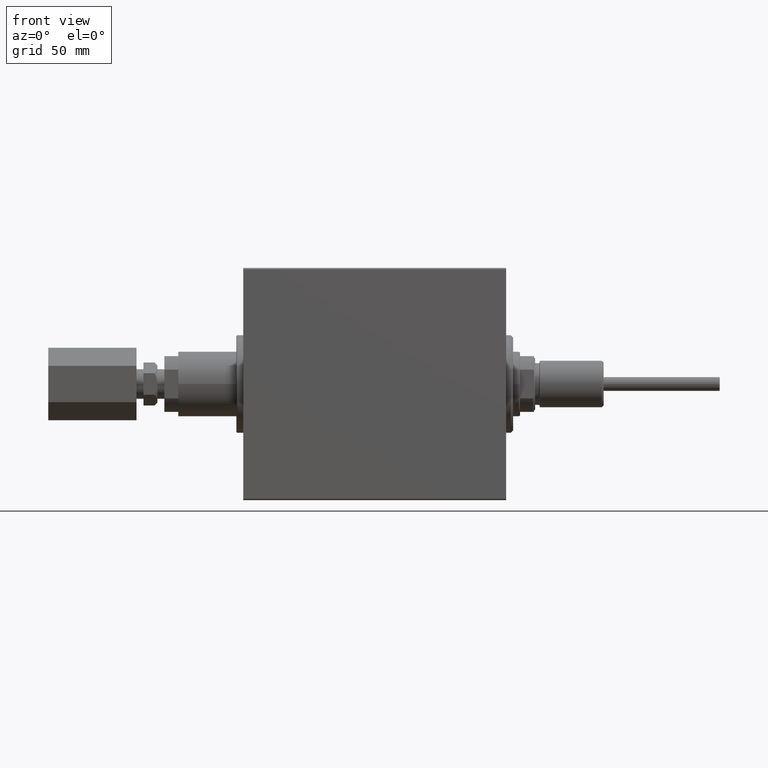
[diagram: clean part render]
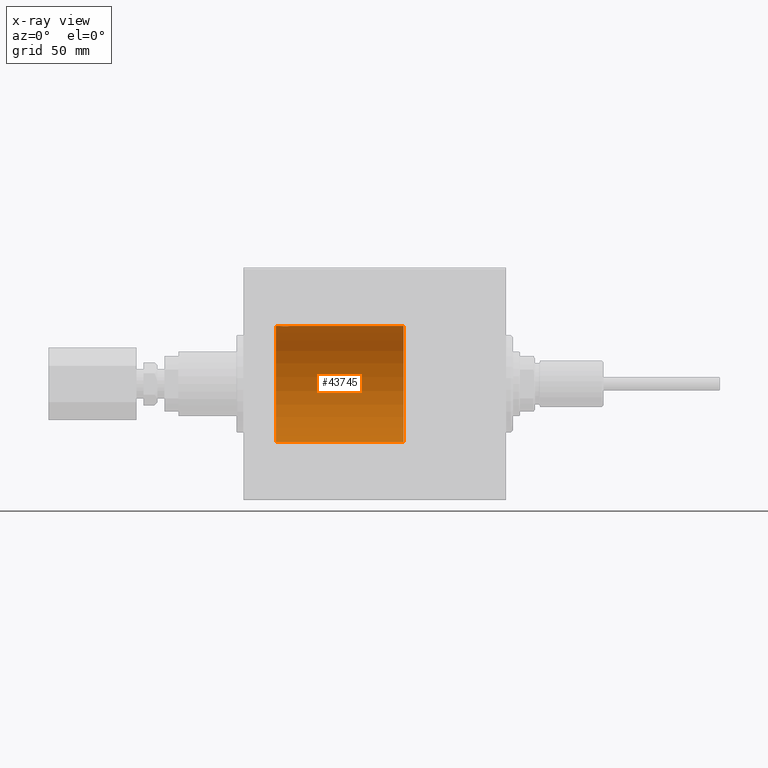
[diagram: x-ray — body ghosted, one internal face saturated and labeled with its STEP entity id]
A machine part, front view, then the same camera in x-ray: the body is ghosted and one INTERNAL B-rep face — a face not visible from any outside direction — is saturated and labeled: STEP entity #43745.
In plain terms, the highlighted cylindrical surface (partial cylindrical patch) has radius 25 mm, axis along (1, 0, -0).
Its self-contained STEP definition (entity closure, byte-faithful):
#419 = CARTESIAN_POINT ( 'NONE',  ( 95.84560666148634311, -2.420689345803763715, 24.88254961038873603 ) ) ;
#630 = ORIENTED_EDGE ( 'NONE', *, *, #33164, .F. ) ;
#656 = CARTESIAN_POINT ( 'NONE',  ( 97.70000000000000284, -0.3305063766663749458, 25.00000000000000355 ) ) ;
#1363 = CARTESIAN_POINT ( 'NONE',  ( 92.77985090779071697, -0.6480119923854230635, 24.99212088949391131 ) ) ;
#1863 = DIRECTION ( 'NONE',  ( 0.000000000000000000, 0.000000000000000000, 1.000000000000000000 ) ) ;
#2766 = EDGE_CURVE ( 'NONE', #29213, #4576, #47558, .T. ) ;
#2931 = EDGE_CURVE ( 'NONE', #25366, #4789, #19327, .T. ) ;
#3809 = CARTESIAN_POINT ( 'NONE',  ( 99.20000000000000284, 0.000000000000000000, 25.00000000000000000 ) ) ;
#4035 = CARTESIAN_POINT ( 'NONE',  ( 94.39211657594196936, -2.371528299825756303, 24.88734287464371064 ) ) ;
#4266 = CARTESIAN_POINT ( 'NONE',  ( 96.45084023924056282, -2.170728182476725721, 24.90574631553725027 ) ) ;
#4506 = CARTESIAN_POINT ( 'NONE',  ( 96.00435660916305380, -2.372734907014180994, 24.88722742718433878 ) ) ;
#4576 = VERTEX_POINT ( 'NONE', #22021 ) ;
#4789 = VERTEX_POINT ( 'NONE', #28224 ) ;
#6466 = DIRECTION ( 'NONE',  ( -1.000000000000000000, -0.000000000000000000, -0.000000000000000000 ) ) ;
#7886 = CARTESIAN_POINT ( 'NONE',  ( 94.08963203491136085, -2.245863995402908930, 24.89899750494197406 ) ) ;
#8391 = CIRCLE ( 'NONE', #16057, 25.00000000000000000 ) ;
#8848 = DIRECTION ( 'NONE',  ( -1.000000000000000000, 0.000000000000000000, 0.000000000000000000 ) ) ;
#8859 = CARTESIAN_POINT ( 'NONE',  ( 99.20000000000000284, 0.000000000000000000, 0.000000000000000000 ) ) ;
#10094 = CYLINDRICAL_SURFACE ( 'NONE', #32264, 25.00000000000000000 ) ;
#11360 = VECTOR ( 'NONE', #23410, 1000.000000000000000 ) ;
#11502 = CARTESIAN_POINT ( 'NONE',  ( 93.31587617213531871, -1.651251241585106388, 24.94567559498349141 ) ) ;
#11970 = CARTESIAN_POINT ( 'NONE',  ( 97.44606379094071258, -1.109818057797416158, 24.97580694515542987 ) ) ;
#12226 = CARTESIAN_POINT ( 'NONE',  ( 44.20000000000000284, 0.000000000000000000, 0.000000000000000000 ) ) ;
#15112 = CARTESIAN_POINT ( 'NONE',  ( 96.30723845838410568, -2.247417070759902824, 24.89885693081946627 ) ) ;
#15816 = CARTESIAN_POINT ( 'NONE',  ( 93.67463817756919298, -1.987446652080264275, 24.92104239223420237 ) ) ;
#16056 = CARTESIAN_POINT ( 'NONE',  ( 93.02988709719075189, -1.252049606094338241, 24.96900299967627390 ) ) ;
#16057 = AXIS2_PLACEMENT_3D ( 'NONE', #12226, #8848, #1863 ) ;
#18586 = EDGE_LOOP ( 'NONE', ( #630, #31924, #18823, #42326, #31510, #20892 ) ) ;
#18722 = CARTESIAN_POINT ( 'NONE',  ( 95.03293504821941440, -2.499872792855089454, 24.87469871246082320 ) ) ;
#18823 = ORIENTED_EDGE ( 'NONE', *, *, #41287, .T. ) ;
#18954 = CARTESIAN_POINT ( 'NONE',  ( 96.85121133559114526, -1.884161199660618680, 24.92916496727982789 ) ) ;
#19191 = CARTESIAN_POINT ( 'NONE',  ( 97.63349355239749627, -0.6588655613945847422, 24.99312727339971119 ) ) ;
#19327 = LINE ( 'NONE', #19568, #32020 ) ;
#19568 = CARTESIAN_POINT ( 'NONE',  ( 99.20000000000000284, 3.061616997868382254E-15, -25.00000000000000000 ) ) ;
#20083 = CARTESIAN_POINT ( 'NONE',  ( 97.70000000000000284, -5.800234900828521566E-18, 25.00000000000000000 ) ) ;
#20892 = ORIENTED_EDGE ( 'NONE', *, *, #34124, .F. ) ;
#22021 = CARTESIAN_POINT ( 'NONE',  ( 44.20000000000000284, 0.000000000000000000, 25.00000000000000000 ) ) ;
#22060 = AXIS2_PLACEMENT_3D ( 'NONE', #8859, #27353, #24468 ) ;
#22311 = CARTESIAN_POINT ( 'NONE',  ( 94.87052319885732743, -2.483544361357278518, 24.87635491893502149 ) ) ;
#22541 = CARTESIAN_POINT ( 'NONE',  ( 94.55095609830901537, -2.419770561643915130, 24.88263927071750814 ) ) ;
#22773 = CARTESIAN_POINT ( 'NONE',  ( 97.08185954148648023, -1.653834020452937814, 24.94550385189585029 ) ) ;
#23410 = DIRECTION ( 'NONE',  ( -1.000000000000000000, -0.000000000000000000, -0.000000000000000000 ) ) ;
#24468 = DIRECTION ( 'NONE',  ( 0.000000000000000000, 0.000000000000000000, 1.000000000000000000 ) ) ;
#25366 = VERTEX_POINT ( 'NONE', #47514 ) ;
#26385 = CARTESIAN_POINT ( 'NONE',  ( 97.36827641493955809, -1.255214705003183218, 24.96884293994578030 ) ) ;
#27094 = CARTESIAN_POINT ( 'NONE',  ( 92.95239748980452532, -1.106703319666883845, 24.97594585958023927 ) ) ;
#27353 = DIRECTION ( 'NONE',  ( -1.000000000000000000, 0.000000000000000000, 0.000000000000000000 ) ) ;
#28224 = CARTESIAN_POINT ( 'NONE',  ( 44.20000000000000284, 3.061616997868382254E-15, -25.00000000000000000 ) ) ;
#28813 = FACE_OUTER_BOUND ( 'NONE', #18586, .T. ) ;
#29213 = VERTEX_POINT ( 'NONE', #34254 ) ;
#29752 = CARTESIAN_POINT ( 'NONE',  ( 96.72256774340191043, -1.989585286700250144, 24.92087098724765681 ) ) ;
#30737 = VERTEX_POINT ( 'NONE', #20083 ) ;
#31510 = ORIENTED_EDGE ( 'NONE', *, *, #39248, .T. ) ;
#31924 = ORIENTED_EDGE ( 'NONE', *, *, #2931, .T. ) ;
#32020 = VECTOR ( 'NONE', #37324, 1000.000000000000000 ) ;
#32264 = AXIS2_PLACEMENT_3D ( 'NONE', #39393, #6466, #39864 ) ;
#33164 = EDGE_CURVE ( 'NONE', #25366, #44261, #40474, .T. ) ;
#33349 = CARTESIAN_POINT ( 'NONE',  ( 95.36323589638543297, -2.500125740978202948, 24.87467329022545570 ) ) ;
#33584 = CARTESIAN_POINT ( 'NONE',  ( 97.18538033717096880, -1.528152964861314356, 24.95362559291379867 ) ) ;
#33825 = CARTESIAN_POINT ( 'NONE',  ( 95.52596570039463586, -2.484007091859770089, 24.87630842367763506 ) ) ;
#34059 = CARTESIAN_POINT ( 'NONE',  ( 97.70000000000000284, -5.800234900828521566E-18, 25.00000000000000000 ) ) ;
#34124 = EDGE_CURVE ( 'NONE', #44261, #30737, #38307, .T. ) ;
#34254 = CARTESIAN_POINT ( 'NONE',  ( 92.70000000000000284, -1.940203396391078535E-23, 25.00000000000000000 ) ) ;
#36208 = B_SPLINE_CURVE_WITH_KNOTS ( 'NONE', 3,
 ( #36962, #45121, #44884, #1363, #41046, #27094, #16056, #45357, #11502, #41765, #15816, #40820, #7886, #4035, #22541, #22311, #18722, #33349, #33825, #419, #4506, #15112, #4266, #29752, #18954, #22773, #33584, #26385, #11970, #19191, #656, #34059 ),
 .UNSPECIFIED., .F., .F.,
 ( 4, 2, 2, 2, 2, 2, 2, 2, 2, 2, 2, 2, 2, 2, 2, 4 ),
 ( 0.007821024441662279003, 0.008309723826317888876, 0.008798423210973498748, 0.009287122595629108621, 0.009775821980284718493, 0.01026452136494033010, 0.01075322074959593824, 0.01124192013425154811, 0.01173061951890715798, 0.01221931890356276612, 0.01270801828821837599, 0.01319671767287398587, 0.01368541705752959400, 0.01417411644218520388, 0.01466281582684081375, 0.01564021459615201615 ),
 .UNSPECIFIED. ) ;
#36321 = CARTESIAN_POINT ( 'NONE',  ( 99.20000000000000284, 0.000000000000000000, 25.00000000000000000 ) ) ;
#36647 = VECTOR ( 'NONE', #44198, 1000.000000000000000 ) ;
#36962 = CARTESIAN_POINT ( 'NONE',  ( 92.70000000000000284, -1.940203396391078535E-23, 25.00000000000000000 ) ) ;
#37324 = DIRECTION ( 'NONE',  ( -1.000000000000000000, -0.000000000000000000, -0.000000000000000000 ) ) ;
#38307 = LINE ( 'NONE', #45282, #11360 ) ;
#39248 = EDGE_CURVE ( 'NONE', #29213, #30737, #36208, .T. ) ;
#39393 = CARTESIAN_POINT ( 'NONE',  ( 99.20000000000000284, 0.000000000000000000, 0.000000000000000000 ) ) ;
#39864 = DIRECTION ( 'NONE',  ( 0.000000000000000000, 0.000000000000000000, 1.000000000000000000 ) ) ;
#40474 = CIRCLE ( 'NONE', #22060, 25.00000000000000000 ) ;
#40820 = CARTESIAN_POINT ( 'NONE',  ( 93.94616804575494484, -2.169003991399873765, 24.90589728951138682 ) ) ;
#41046 = CARTESIAN_POINT ( 'NONE',  ( 92.82784030591395208, -0.8058335233485457438, 24.98746277938383642 ) ) ;
#41287 = EDGE_CURVE ( 'NONE', #4789, #4576, #8391, .T. ) ;
#41765 = CARTESIAN_POINT ( 'NONE',  ( 93.54616663850660530, -1.881857718844721639, 24.92933960374833546 ) ) ;
#42326 = ORIENTED_EDGE ( 'NONE', *, *, #2766, .F. ) ;
#43745 = ADVANCED_FACE ( 'NONE', ( #28813 ), #10094, .F. ) ;
#44198 = DIRECTION ( 'NONE',  ( -1.000000000000000000, -0.000000000000000000, -0.000000000000000000 ) ) ;
#44261 = VERTEX_POINT ( 'NONE', #36321 ) ;
#44884 = CARTESIAN_POINT ( 'NONE',  ( 92.71582159942344958, -0.3254210271412216748, 24.99840249400845238 ) ) ;
#45121 = CARTESIAN_POINT ( 'NONE',  ( 92.70000000000003126, -0.1631750940176195375, 25.00000000000000711 ) ) ;
#45282 = CARTESIAN_POINT ( 'NONE',  ( 99.20000000000000284, 0.000000000000000000, 25.00000000000000000 ) ) ;
#45357 = CARTESIAN_POINT ( 'NONE',  ( 93.21250184165603514, -1.525407911884367307, 24.95379469572362652 ) ) ;
#47514 = CARTESIAN_POINT ( 'NONE',  ( 99.20000000000000284, 3.061616997868382254E-15, -25.00000000000000000 ) ) ;
#47558 = LINE ( 'NONE', #3809, #36647 ) ;